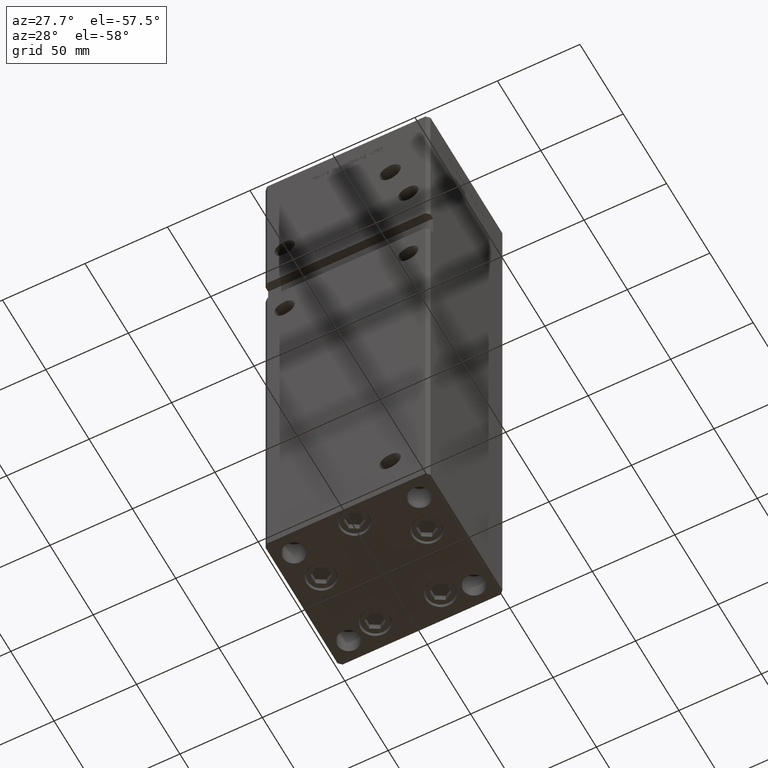
[diagram: clean part render]
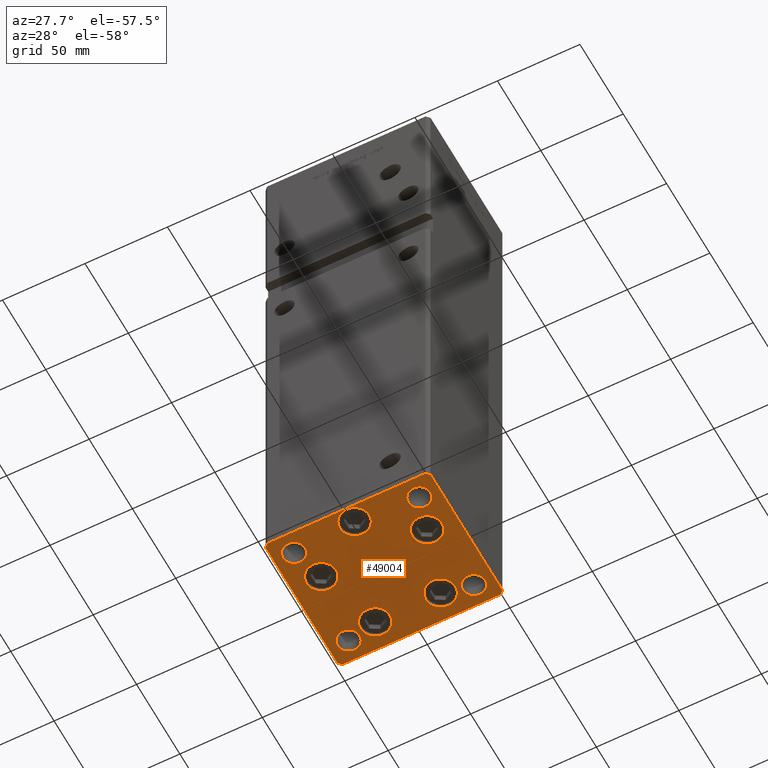
[diagram: same view with one face highlighted and labeled with its STEP entity id]
A machine part, auxiliary view. The second image highlights one B-rep face of the part: STEP entity #49004.
In plain terms, the highlighted planar face has unit normal (0, 0, -1).
Its self-contained STEP definition (entity closure, byte-faithful):
#26 = FACE_BOUND ( 'NONE', #40881, .T. ) ;
#980 = DIRECTION ( 'NONE',  ( 0.7071067811865463515, 0.7071067811865487940, 0.000000000000000000 ) ) ;
#1080 = CARTESIAN_POINT ( 'NONE',  ( 10.82068048781373193, 27.62500000000000000, 0.000000000000000000 ) ) ;
#1193 = DIRECTION ( 'NONE',  ( 1.000000000000000000, 0.000000000000000000, 0.000000000000000000 ) ) ;
#1255 = EDGE_LOOP ( 'NONE', ( #21657, #38589 ) ) ;
#1537 = DIRECTION ( 'NONE',  ( 1.000000000000000000, 0.000000000000000000, 0.000000000000000000 ) ) ;
#1573 = FACE_BOUND ( 'NONE', #1815, .T. ) ;
#1815 = EDGE_LOOP ( 'NONE', ( #33934, #4918 ) ) ;
#1846 = LINE ( 'NONE', #39487, #21849 ) ;
#1870 = EDGE_LOOP ( 'NONE', ( #36799, #12219 ) ) ;
#2013 = DIRECTION ( 'NONE',  ( 0.000000000000000000, -0.000000000000000000, -1.000000000000000000 ) ) ;
#2200 = AXIS2_PLACEMENT_3D ( 'NONE', #21916, #38039, #1193 ) ;
#2552 = CARTESIAN_POINT ( 'NONE',  ( -44.74999999999999289, -31.50000000000000000, 0.000000000000000000 ) ) ;
#2562 = CARTESIAN_POINT ( 'NONE',  ( -50.00000000000000000, -41.50000000000000000, 0.000000000000000000 ) ) ;
#2689 = ORIENTED_EDGE ( 'NONE', *, *, #50526, .T. ) ;
#2885 = CARTESIAN_POINT ( 'NONE',  ( 32.05550741379015278, -11.33333333333333037, 0.000000000000000000 ) ) ;
#2901 = VERTEX_POINT ( 'NONE', #1080 ) ;
#2993 = CARTESIAN_POINT ( 'NONE',  ( 41.05550741379015278, -11.33333333333332860, 0.000000000000000000 ) ) ;
#3148 = CARTESIAN_POINT ( 'NONE',  ( 50.00000000000000000, -41.49999999999999289, 0.000000000000000000 ) ) ;
#3494 = CARTESIAN_POINT ( 'NONE',  ( -28.82068048781373548, 27.62499999999999645, 0.000000000000000000 ) ) ;
#3969 = VERTEX_POINT ( 'NONE', #12867 ) ;
#4104 = CARTESIAN_POINT ( 'NONE',  ( 19.82068048781373193, 27.62500000000000000, 0.000000000000000000 ) ) ;
#4188 = DIRECTION ( 'NONE',  ( 0.000000000000000000, -0.000000000000000000, -1.000000000000000000 ) ) ;
#4204 = AXIS2_PLACEMENT_3D ( 'NONE', #38867, #10916, #7139 ) ;
#4294 = DIRECTION ( 'NONE',  ( 1.000000000000000000, 0.000000000000000000, 0.000000000000000000 ) ) ;
#4350 = EDGE_CURVE ( 'NONE', #27967, #43871, #19067, .T. ) ;
#4399 = EDGE_CURVE ( 'NONE', #2901, #26869, #14191, .T. ) ;
#4646 = EDGE_CURVE ( 'NONE', #26900, #32086, #13911, .T. ) ;
#4918 = ORIENTED_EDGE ( 'NONE', *, *, #50264, .T. ) ;
#5067 = EDGE_CURVE ( 'NONE', #26869, #2901, #39124, .T. ) ;
#5405 = CARTESIAN_POINT ( 'NONE',  ( 38.00000000000000000, 31.49999999999999289, 0.000000000000000000 ) ) ;
#5468 = CIRCLE ( 'NONE', #41421, 9.000000000000000000 ) ;
#5627 = CIRCLE ( 'NONE', #2200, 6.749999999999999112 ) ;
#5645 = DIRECTION ( 'NONE',  ( 1.000000000000000000, 0.000000000000000000, 0.000000000000000000 ) ) ;
#5763 = EDGE_CURVE ( 'NONE', #50346, #12679, #5627, .T. ) ;
#5785 = ORIENTED_EDGE ( 'NONE', *, *, #37604, .T. ) ;
#5810 = DIRECTION ( 'NONE',  ( 0.7071067811865474617, -0.7071067811865474617, 0.000000000000000000 ) ) ;
#5852 = EDGE_LOOP ( 'NONE', ( #8417, #12189 ) ) ;
#6076 = CARTESIAN_POINT ( 'NONE',  ( 49.99999999999992184, 41.49999999999998579, 0.000000000000000000 ) ) ;
#6318 = ORIENTED_EDGE ( 'NONE', *, *, #50022, .T. ) ;
#6461 = AXIS2_PLACEMENT_3D ( 'NONE', #34438, #9464, #25855 ) ;
#6729 = CARTESIAN_POINT ( 'NONE',  ( -38.00000000000000000, 31.50000000000000000, 0.000000000000000000 ) ) ;
#6833 = DIRECTION ( 'NONE',  ( 0.000000000000000000, -0.000000000000000000, -1.000000000000000000 ) ) ;
#7139 = DIRECTION ( 'NONE',  ( 1.000000000000000000, 0.000000000000000000, 0.000000000000000000 ) ) ;
#7142 = VERTEX_POINT ( 'NONE', #31106 ) ;
#7360 = DIRECTION ( 'NONE',  ( 1.000000000000000000, 0.000000000000000000, 0.000000000000000000 ) ) ;
#7497 = EDGE_LOOP ( 'NONE', ( #6318, #2689 ) ) ;
#7968 = CIRCLE ( 'NONE', #13150, 6.749999999999999112 ) ;
#8193 = AXIS2_PLACEMENT_3D ( 'NONE', #21980, #41885, #1537 ) ;
#8335 = CARTESIAN_POINT ( 'NONE',  ( -19.82068048781373903, 27.62499999999999645, 0.000000000000000000 ) ) ;
#8405 = CARTESIAN_POINT ( 'NONE',  ( 50.00000000000000000, -41.49999999999999289, 0.000000000000000000 ) ) ;
#8417 = ORIENTED_EDGE ( 'NONE', *, *, #4399, .T. ) ;
#8980 = LINE ( 'NONE', #25118, #29100 ) ;
#9069 = CARTESIAN_POINT ( 'NONE',  ( 47.99999999999999289, -43.50000000000001421, 0.000000000000000000 ) ) ;
#9275 = CARTESIAN_POINT ( 'NONE',  ( -8.999999999999996447, -34.00000000000000000, 0.000000000000000000 ) ) ;
#9464 = DIRECTION ( 'NONE',  ( 0.000000000000000000, -0.000000000000000000, -1.000000000000000000 ) ) ;
#9547 = CIRCLE ( 'NONE', #30972, 9.000000000000000000 ) ;
#10397 = VECTOR ( 'NONE', #980, 1000.000000000000000 ) ;
#10916 = DIRECTION ( 'NONE',  ( 0.000000000000000000, -0.000000000000000000, -1.000000000000000000 ) ) ;
#11326 = CARTESIAN_POINT ( 'NONE',  ( -23.05550741379014923, -11.33333333333333748, 0.000000000000000000 ) ) ;
#11647 = CIRCLE ( 'NONE', #45956, 6.749999999999999112 ) ;
#11796 = DIRECTION ( 'NONE',  ( 1.000000000000000000, 0.000000000000000000, 0.000000000000000000 ) ) ;
#12189 = ORIENTED_EDGE ( 'NONE', *, *, #5067, .T. ) ;
#12219 = ORIENTED_EDGE ( 'NONE', *, *, #27365, .T. ) ;
#12473 = VERTEX_POINT ( 'NONE', #23706 ) ;
#12503 = AXIS2_PLACEMENT_3D ( 'NONE', #4104, #52465, #44439 ) ;
#12679 = VERTEX_POINT ( 'NONE', #44221 ) ;
#12867 = CARTESIAN_POINT ( 'NONE',  ( 23.05550741379014923, -11.33333333333333037, 0.000000000000000000 ) ) ;
#13007 = VERTEX_POINT ( 'NONE', #44937 ) ;
#13070 = CARTESIAN_POINT ( 'NONE',  ( -32.05550741379015278, -11.33333333333333925, 0.000000000000000000 ) ) ;
#13150 = AXIS2_PLACEMENT_3D ( 'NONE', #43516, #44298, #39753 ) ;
#13188 = VERTEX_POINT ( 'NONE', #11326 ) ;
#13276 = VERTEX_POINT ( 'NONE', #3494 ) ;
#13529 = EDGE_CURVE ( 'NONE', #32086, #27967, #1846, .T. ) ;
#13717 = DIRECTION ( 'NONE',  ( 0.000000000000000000, -0.000000000000000000, -1.000000000000000000 ) ) ;
#13845 = CARTESIAN_POINT ( 'NONE',  ( 47.99999999999990763, 43.50000000000000000, 0.000000000000000000 ) ) ;
#13911 = LINE ( 'NONE', #30280, #32190 ) ;
#13955 = DIRECTION ( 'NONE',  ( -0.000000000000000000, 0.000000000000000000, 1.000000000000000000 ) ) ;
#14008 = DIRECTION ( 'NONE',  ( -0.000000000000000000, 0.000000000000000000, 1.000000000000000000 ) ) ;
#14191 = CIRCLE ( 'NONE', #20205, 8.999999999999998224 ) ;
#14321 = AXIS2_PLACEMENT_3D ( 'NONE', #13070, #4188, #46106 ) ;
#14403 = DIRECTION ( 'NONE',  ( 1.000000000000000000, 0.000000000000000000, 0.000000000000000000 ) ) ;
#14476 = DIRECTION ( 'NONE',  ( 0.000000000000000000, -0.000000000000000000, -1.000000000000000000 ) ) ;
#14698 = EDGE_LOOP ( 'NONE', ( #33992, #22353 ) ) ;
#14796 = DIRECTION ( 'NONE',  ( -0.000000000000000000, 0.000000000000000000, 1.000000000000000000 ) ) ;
#15027 = DIRECTION ( 'NONE',  ( -1.000000000000000000, -3.614007241618350743E-16, 0.000000000000000000 ) ) ;
#15072 = AXIS2_PLACEMENT_3D ( 'NONE', #42206, #29826, #5645 ) ;
#15146 = CARTESIAN_POINT ( 'NONE',  ( -48.00000000000000711, 43.49999999999996447, 0.000000000000000000 ) ) ;
#15845 = DIRECTION ( 'NONE',  ( 1.000000000000000000, 0.000000000000000000, 0.000000000000000000 ) ) ;
#15973 = ORIENTED_EDGE ( 'NONE', *, *, #41562, .T. ) ;
#16453 = DIRECTION ( 'NONE',  ( 1.000000000000000000, 0.000000000000000000, 0.000000000000000000 ) ) ;
#17709 = VERTEX_POINT ( 'NONE', #29770 ) ;
#18159 = EDGE_CURVE ( 'NONE', #12679, #50346, #43438, .T. ) ;
#18384 = ORIENTED_EDGE ( 'NONE', *, *, #4646, .T. ) ;
#18739 = CIRCLE ( 'NONE', #47913, 9.000000000000000000 ) ;
#18813 = CIRCLE ( 'NONE', #28218, 9.000000000000001776 ) ;
#19067 = LINE ( 'NONE', #23352, #41657 ) ;
#19210 = ORIENTED_EDGE ( 'NONE', *, *, #27885, .T. ) ;
#19517 = DIRECTION ( 'NONE',  ( 0.000000000000000000, -0.000000000000000000, -1.000000000000000000 ) ) ;
#19861 = CARTESIAN_POINT ( 'NONE',  ( -44.75000000000000000, 31.50000000000000000, 0.000000000000000000 ) ) ;
#20205 = AXIS2_PLACEMENT_3D ( 'NONE', #45085, #24402, #11796 ) ;
#20491 = FACE_BOUND ( 'NONE', #1255, .T. ) ;
#21051 = EDGE_CURVE ( 'NONE', #13188, #17709, #31475, .T. ) ;
#21657 = ORIENTED_EDGE ( 'NONE', *, *, #38203, .T. ) ;
#21679 = VERTEX_POINT ( 'NONE', #37387 ) ;
#21771 = CARTESIAN_POINT ( 'NONE',  ( 38.00000000000000000, -31.49999999999999289, 0.000000000000000000 ) ) ;
#21849 = VECTOR ( 'NONE', #15027, 1000.000000000000000 ) ;
#21916 = CARTESIAN_POINT ( 'NONE',  ( 38.00000000000000000, 31.49999999999999289, 0.000000000000000000 ) ) ;
#21968 = VERTEX_POINT ( 'NONE', #2552 ) ;
#21980 = CARTESIAN_POINT ( 'NONE',  ( -37.99999999999999289, -31.50000000000000000, 0.000000000000000000 ) ) ;
#22353 = ORIENTED_EDGE ( 'NONE', *, *, #21051, .T. ) ;
#22771 = CIRCLE ( 'NONE', #6461, 6.749999999999999112 ) ;
#23352 = CARTESIAN_POINT ( 'NONE',  ( -48.00000000000000711, 43.49999999999996447, 0.000000000000000000 ) ) ;
#23610 = DIRECTION ( 'NONE',  ( -0.7071067811865463515, -0.7071067811865487940, 0.000000000000000000 ) ) ;
#23613 = AXIS2_PLACEMENT_3D ( 'NONE', #29793, #13955, #16453 ) ;
#23706 = CARTESIAN_POINT ( 'NONE',  ( -47.99999999999999289, -43.50000000000001421, 0.000000000000000000 ) ) ;
#23931 = DIRECTION ( 'NONE',  ( 0.000000000000000000, -0.000000000000000000, -1.000000000000000000 ) ) ;
#24013 = EDGE_CURVE ( 'NONE', #21679, #39848, #18739, .T. ) ;
#24402 = DIRECTION ( 'NONE',  ( 0.000000000000000000, -0.000000000000000000, -1.000000000000000000 ) ) ;
#24680 = EDGE_LOOP ( 'NONE', ( #28297, #25943 ) ) ;
#25118 = CARTESIAN_POINT ( 'NONE',  ( -50.00000000000000711, 41.49999999999995026, 0.000000000000000000 ) ) ;
#25532 = DIRECTION ( 'NONE',  ( 1.000000000000000000, 0.000000000000000000, 0.000000000000000000 ) ) ;
#25775 = FACE_BOUND ( 'NONE', #5852, .T. ) ;
#25855 = DIRECTION ( 'NONE',  ( 1.000000000000000000, 0.000000000000000000, 0.000000000000000000 ) ) ;
#25943 = ORIENTED_EDGE ( 'NONE', *, *, #46705, .T. ) ;
#26013 = DIRECTION ( 'NONE',  ( 0.000000000000000000, -0.000000000000000000, -1.000000000000000000 ) ) ;
#26033 = FACE_BOUND ( 'NONE', #7497, .T. ) ;
#26222 = CIRCLE ( 'NONE', #15072, 9.000000000000000000 ) ;
#26836 = CARTESIAN_POINT ( 'NONE',  ( -50.00000000000000000, -41.50000000000000000, 0.000000000000000000 ) ) ;
#26869 = VERTEX_POINT ( 'NONE', #47706 ) ;
#26900 = VERTEX_POINT ( 'NONE', #6076 ) ;
#26903 = LINE ( 'NONE', #42782, #44825 ) ;
#27073 = CARTESIAN_POINT ( 'NONE',  ( 32.05550741379015278, -11.33333333333333037, 0.000000000000000000 ) ) ;
#27365 = EDGE_CURVE ( 'NONE', #50848, #3969, #18813, .T. ) ;
#27402 = VERTEX_POINT ( 'NONE', #52313 ) ;
#27462 = VERTEX_POINT ( 'NONE', #3148 ) ;
#27711 = EDGE_CURVE ( 'NONE', #17709, #13188, #52265, .T. ) ;
#27885 = EDGE_CURVE ( 'NONE', #43871, #35336, #8980, .T. ) ;
#27967 = VERTEX_POINT ( 'NONE', #15146 ) ;
#28079 = CARTESIAN_POINT ( 'NONE',  ( 38.00000000000000000, -31.49999999999999289, 0.000000000000000000 ) ) ;
#28218 = AXIS2_PLACEMENT_3D ( 'NONE', #2885, #14476, #47510 ) ;
#28297 = ORIENTED_EDGE ( 'NONE', *, *, #49477, .T. ) ;
#28565 = ORIENTED_EDGE ( 'NONE', *, *, #4350, .T. ) ;
#28895 = VERTEX_POINT ( 'NONE', #31017 ) ;
#29100 = VECTOR ( 'NONE', #33159, 1000.000000000000000 ) ;
#29770 = CARTESIAN_POINT ( 'NONE',  ( -41.05550741379015278, -11.33333333333333925, 0.000000000000000000 ) ) ;
#29793 = CARTESIAN_POINT ( 'NONE',  ( 0.000000000000000000, 0.000000000000000000, 0.000000000000000000 ) ) ;
#29826 = DIRECTION ( 'NONE',  ( 0.000000000000000000, -0.000000000000000000, -1.000000000000000000 ) ) ;
#30237 = EDGE_CURVE ( 'NONE', #43477, #46308, #50503, .T. ) ;
#30280 = CARTESIAN_POINT ( 'NONE',  ( 49.99999999999992184, 41.49999999999998579, 0.000000000000000000 ) ) ;
#30972 = AXIS2_PLACEMENT_3D ( 'NONE', #43916, #6833, #7360 ) ;
#31017 = CARTESIAN_POINT ( 'NONE',  ( -10.82068048781373903, 27.62499999999999645, 0.000000000000000000 ) ) ;
#31106 = CARTESIAN_POINT ( 'NONE',  ( 31.25000000000000000, -31.49999999999999289, 0.000000000000000000 ) ) ;
#31475 = CIRCLE ( 'NONE', #14321, 9.000000000000001776 ) ;
#31559 = ORIENTED_EDGE ( 'NONE', *, *, #42651, .F. ) ;
#32086 = VERTEX_POINT ( 'NONE', #13845 ) ;
#32190 = VECTOR ( 'NONE', #46679, 1000.000000000000114 ) ;
#32571 = LINE ( 'NONE', #8405, #42383 ) ;
#32615 = ORIENTED_EDGE ( 'NONE', *, *, #13529, .T. ) ;
#32817 = FACE_BOUND ( 'NONE', #14698, .T. ) ;
#33159 = DIRECTION ( 'NONE',  ( 8.360113137237628665E-17, -1.000000000000000000, 0.000000000000000000 ) ) ;
#33321 = ORIENTED_EDGE ( 'NONE', *, *, #5763, .F. ) ;
#33934 = ORIENTED_EDGE ( 'NONE', *, *, #45751, .T. ) ;
#33992 = ORIENTED_EDGE ( 'NONE', *, *, #27711, .T. ) ;
#34295 = EDGE_CURVE ( 'NONE', #35336, #12473, #43425, .T. ) ;
#34418 = DIRECTION ( 'NONE',  ( 1.000000000000000000, 0.000000000000000000, 0.000000000000000000 ) ) ;
#34438 = CARTESIAN_POINT ( 'NONE',  ( -37.99999999999999289, -31.50000000000000000, 0.000000000000000000 ) ) ;
#34797 = AXIS2_PLACEMENT_3D ( 'NONE', #27073, #26013, #39456 ) ;
#35062 = AXIS2_PLACEMENT_3D ( 'NONE', #6729, #14796, #15845 ) ;
#35336 = VERTEX_POINT ( 'NONE', #26836 ) ;
#36352 = DIRECTION ( 'NONE',  ( -1.003213576468515193E-15, 1.000000000000000000, 0.000000000000000000 ) ) ;
#36602 = FACE_BOUND ( 'NONE', #1870, .T. ) ;
#36799 = ORIENTED_EDGE ( 'NONE', *, *, #47145, .T. ) ;
#37287 = CARTESIAN_POINT ( 'NONE',  ( -31.25000000000000000, 31.50000000000000000, 0.000000000000000000 ) ) ;
#37387 = CARTESIAN_POINT ( 'NONE',  ( 9.000000000000003553, -34.00000000000000000, 0.000000000000000000 ) ) ;
#37604 = EDGE_CURVE ( 'NONE', #27402, #27462, #50156, .T. ) ;
#38039 = DIRECTION ( 'NONE',  ( -0.000000000000000000, 0.000000000000000000, 1.000000000000000000 ) ) ;
#38203 = EDGE_CURVE ( 'NONE', #39848, #21679, #9547, .T. ) ;
#38290 = AXIS2_PLACEMENT_3D ( 'NONE', #5405, #14008, #34418 ) ;
#38402 = FACE_BOUND ( 'NONE', #45346, .T. ) ;
#38589 = ORIENTED_EDGE ( 'NONE', *, *, #24013, .T. ) ;
#38853 = CARTESIAN_POINT ( 'NONE',  ( 4.163799117101000559E-15, -34.00000000000000000, 0.000000000000000000 ) ) ;
#38867 = CARTESIAN_POINT ( 'NONE',  ( -32.05550741379015278, -11.33333333333333925, 0.000000000000000000 ) ) ;
#39114 = CIRCLE ( 'NONE', #8193, 6.749999999999999112 ) ;
#39124 = CIRCLE ( 'NONE', #12503, 8.999999999999998224 ) ;
#39275 = ORIENTED_EDGE ( 'NONE', *, *, #18159, .F. ) ;
#39456 = DIRECTION ( 'NONE',  ( 1.000000000000000000, 0.000000000000000000, 0.000000000000000000 ) ) ;
#39487 = CARTESIAN_POINT ( 'NONE',  ( 47.99999999999990763, 43.50000000000000000, 0.000000000000000000 ) ) ;
#39753 = DIRECTION ( 'NONE',  ( 1.000000000000000000, 0.000000000000000000, 0.000000000000000000 ) ) ;
#39848 = VERTEX_POINT ( 'NONE', #9275 ) ;
#40325 = VERTEX_POINT ( 'NONE', #42204 ) ;
#40881 = EDGE_LOOP ( 'NONE', ( #33321, #39275 ) ) ;
#41421 = AXIS2_PLACEMENT_3D ( 'NONE', #8335, #23931, #4294 ) ;
#41562 = EDGE_CURVE ( 'NONE', #12473, #27402, #26903, .T. ) ;
#41657 = VECTOR ( 'NONE', #23610, 1000.000000000000000 ) ;
#41885 = DIRECTION ( 'NONE',  ( 0.000000000000000000, -0.000000000000000000, -1.000000000000000000 ) ) ;
#42204 = CARTESIAN_POINT ( 'NONE',  ( 44.75000000000000000, -31.49999999999999289, 0.000000000000000000 ) ) ;
#42206 = CARTESIAN_POINT ( 'NONE',  ( -19.82068048781373903, 27.62499999999999645, 0.000000000000000000 ) ) ;
#42334 = CARTESIAN_POINT ( 'NONE',  ( -50.00000000000000711, 41.49999999999995026, 0.000000000000000000 ) ) ;
#42383 = VECTOR ( 'NONE', #36352, 1000.000000000000000 ) ;
#42498 = CIRCLE ( 'NONE', #44217, 6.749999999999999112 ) ;
#42604 = ORIENTED_EDGE ( 'NONE', *, *, #45414, .T. ) ;
#42651 = EDGE_CURVE ( 'NONE', #46308, #43477, #7968, .T. ) ;
#42782 = CARTESIAN_POINT ( 'NONE',  ( -47.99999999999999289, -43.50000000000001421, 0.000000000000000000 ) ) ;
#43425 = LINE ( 'NONE', #2562, #49734 ) ;
#43438 = CIRCLE ( 'NONE', #38290, 6.749999999999999112 ) ;
#43477 = VERTEX_POINT ( 'NONE', #19861 ) ;
#43516 = CARTESIAN_POINT ( 'NONE',  ( -38.00000000000000000, 31.50000000000000000, 0.000000000000000000 ) ) ;
#43871 = VERTEX_POINT ( 'NONE', #42334 ) ;
#43916 = CARTESIAN_POINT ( 'NONE',  ( 4.163799117101000559E-15, -34.00000000000000000, 0.000000000000000000 ) ) ;
#44217 = AXIS2_PLACEMENT_3D ( 'NONE', #28079, #19517, #44478 ) ;
#44221 = CARTESIAN_POINT ( 'NONE',  ( 31.25000000000000000, 31.49999999999999289, 0.000000000000000000 ) ) ;
#44298 = DIRECTION ( 'NONE',  ( -0.000000000000000000, 0.000000000000000000, 1.000000000000000000 ) ) ;
#44439 = DIRECTION ( 'NONE',  ( 1.000000000000000000, 0.000000000000000000, 0.000000000000000000 ) ) ;
#44478 = DIRECTION ( 'NONE',  ( 1.000000000000000000, 0.000000000000000000, 0.000000000000000000 ) ) ;
#44574 = CARTESIAN_POINT ( 'NONE',  ( 44.75000000000000000, 31.49999999999999289, 0.000000000000000000 ) ) ;
#44825 = VECTOR ( 'NONE', #50811, 1000.000000000000000 ) ;
#44924 = FACE_BOUND ( 'NONE', #24680, .T. ) ;
#44937 = CARTESIAN_POINT ( 'NONE',  ( -31.24999999999999289, -31.50000000000000000, 0.000000000000000000 ) ) ;
#45085 = CARTESIAN_POINT ( 'NONE',  ( 19.82068048781373193, 27.62500000000000000, 0.000000000000000000 ) ) ;
#45346 = EDGE_LOOP ( 'NONE', ( #31559, #48483 ) ) ;
#45414 = EDGE_CURVE ( 'NONE', #27462, #26900, #32571, .T. ) ;
#45751 = EDGE_CURVE ( 'NONE', #13276, #28895, #5468, .T. ) ;
#45956 = AXIS2_PLACEMENT_3D ( 'NONE', #21771, #13717, #25532 ) ;
#46106 = DIRECTION ( 'NONE',  ( 1.000000000000000000, 0.000000000000000000, 0.000000000000000000 ) ) ;
#46308 = VERTEX_POINT ( 'NONE', #37287 ) ;
#46679 = DIRECTION ( 'NONE',  ( -0.7071067811865474617, 0.7071067811865474617, 0.000000000000000000 ) ) ;
#46705 = EDGE_CURVE ( 'NONE', #7142, #40325, #11647, .T. ) ;
#47038 = EDGE_LOOP ( 'NONE', ( #47693, #15973, #5785, #42604, #18384, #32615, #28565, #19210 ) ) ;
#47145 = EDGE_CURVE ( 'NONE', #3969, #50848, #48523, .T. ) ;
#47510 = DIRECTION ( 'NONE',  ( 1.000000000000000000, 0.000000000000000000, 0.000000000000000000 ) ) ;
#47693 = ORIENTED_EDGE ( 'NONE', *, *, #34295, .T. ) ;
#47706 = CARTESIAN_POINT ( 'NONE',  ( 28.82068048781372838, 27.62500000000000000, 0.000000000000000000 ) ) ;
#47913 = AXIS2_PLACEMENT_3D ( 'NONE', #38853, #2013, #14403 ) ;
#48483 = ORIENTED_EDGE ( 'NONE', *, *, #30237, .F. ) ;
#48523 = CIRCLE ( 'NONE', #34797, 9.000000000000001776 ) ;
#49004 = ADVANCED_FACE ( 'NONE', ( #1573, #25775, #36602, #20491, #32817, #26, #44924, #38402, #52967, #26033 ), #50202, .T. ) ;
#49477 = EDGE_CURVE ( 'NONE', #40325, #7142, #42498, .T. ) ;
#49734 = VECTOR ( 'NONE', #5810, 1000.000000000000114 ) ;
#50022 = EDGE_CURVE ( 'NONE', #13007, #21968, #22771, .T. ) ;
#50156 = LINE ( 'NONE', #9069, #10397 ) ;
#50202 = PLANE ( 'NONE',  #23613 ) ;
#50264 = EDGE_CURVE ( 'NONE', #28895, #13276, #26222, .T. ) ;
#50346 = VERTEX_POINT ( 'NONE', #44574 ) ;
#50503 = CIRCLE ( 'NONE', #35062, 6.749999999999999112 ) ;
#50526 = EDGE_CURVE ( 'NONE', #21968, #13007, #39114, .T. ) ;
#50811 = DIRECTION ( 'NONE',  ( 1.000000000000000000, 0.000000000000000000, 0.000000000000000000 ) ) ;
#50848 = VERTEX_POINT ( 'NONE', #2993 ) ;
#52265 = CIRCLE ( 'NONE', #4204, 9.000000000000001776 ) ;
#52313 = CARTESIAN_POINT ( 'NONE',  ( 47.99999999999999289, -43.50000000000001421, 0.000000000000000000 ) ) ;
#52465 = DIRECTION ( 'NONE',  ( 0.000000000000000000, -0.000000000000000000, -1.000000000000000000 ) ) ;
#52967 = FACE_OUTER_BOUND ( 'NONE', #47038, .T. ) ;